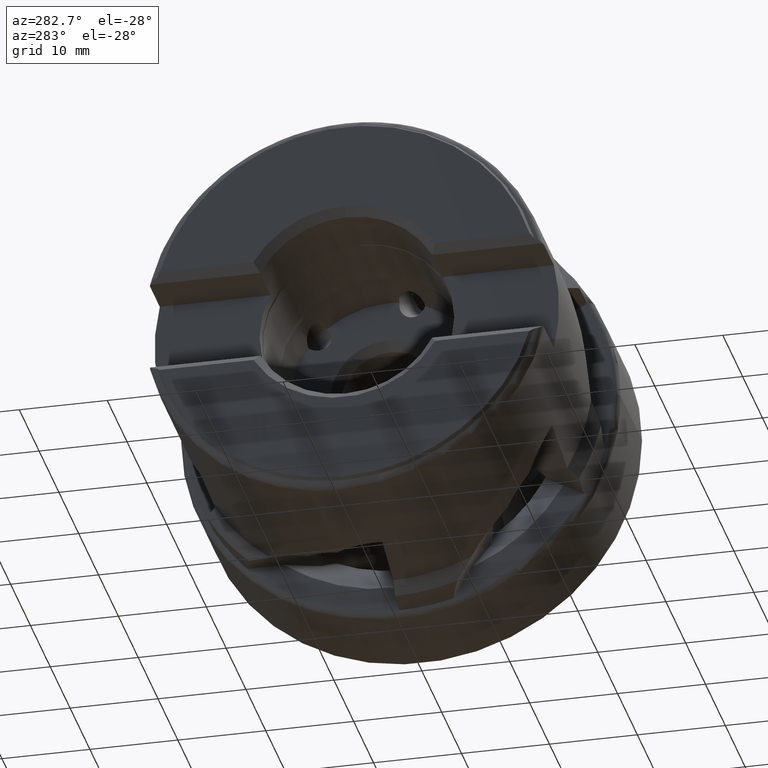
[diagram: clean part render]
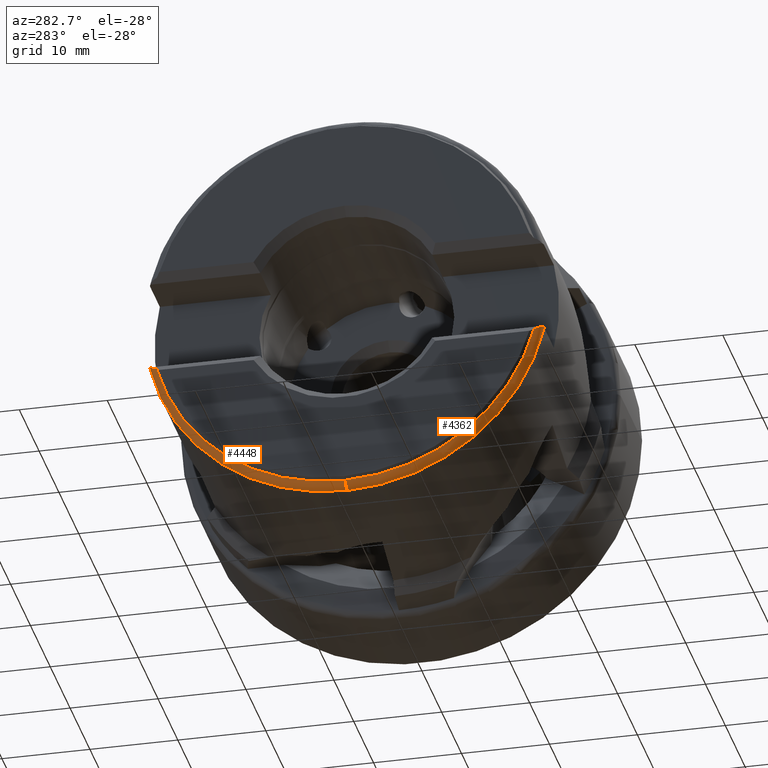
[diagram: same view with one multi-face feature highlighted, each face labeled with its STEP entity id]
A machine part, auxiliary view. The highlighted faces form ONE feature: a constant-radius fillet chain: 2 tangent blend faces with common blend radius 1 mm. The faces share edges in the B-rep.
Their STEP definitions:
[1] entity #4362 (Torus):
#1515 = AXIS2_PLACEMENT_3D ( 'NONE', #7624, #7625, #7626 ) ;
#1516 = AXIS2_PLACEMENT_3D ( 'NONE', #7630, #7631, #7632 ) ;
#1517 = AXIS2_PLACEMENT_3D ( 'NONE', #7635, #7636, #7637 ) ;
#1717 = VERTEX_POINT ( 'NONE', #6655 ) ;
#1750 = VERTEX_POINT ( 'NONE', #6688 ) ;
#1762 = VERTEX_POINT ( 'NONE', #6700 ) ;
#1779 = VERTEX_POINT ( 'NONE', #6717 ) ;
#1791 = VERTEX_POINT ( 'NONE', #6729 ) ;
#2083 = ORIENTED_EDGE ( 'NONE', *, *, #4012, .F. ) ;
#2105 = ORIENTED_EDGE ( 'NONE', *, *, #4011, .F. ) ;
#2137 = ORIENTED_EDGE ( 'NONE', *, *, #4009, .T. ) ;
#2166 = ORIENTED_EDGE ( 'NONE', *, *, #4007, .T. ) ;
#2185 = ORIENTED_EDGE ( 'NONE', *, *, #4010, .F. ) ;
#2325 = B_SPLINE_CURVE_WITH_KNOTS ( 'NONE', 3,
 ( #7633, #7634, #7639, #7640, #7641, #7642 ),
 .UNSPECIFIED., .F., .F.,
 ( 4, 2, 4 ),
 ( 0.006021717635779985300, 0.006282260667027661900, 0.006542803698275339300 ),
 .UNSPECIFIED. ) ;
#2355 = B_SPLINE_CURVE_WITH_KNOTS ( 'NONE', 3,
 ( #7629, #7638, #7644, #7645, #7646, #7647, #7648, #7649 ),
 .UNSPECIFIED., .F., .F.,
 ( 4, 2, 2, 4 ),
 ( 1.061744807446409200E-006, 0.0002681628969979941200, 0.0005352640491885418300, 0.001069466353569637100 ),
 .UNSPECIFIED. ) ;
#3200 = EDGE_LOOP ( 'NONE', ( #2166, #2137, #2185, #2105, #2083 ) ) ;
#4007 = EDGE_CURVE ( 'NONE', #1750, #1791, #5432, .T. ) ;
#4009 = EDGE_CURVE ( 'NONE', #1791, #1717, #5436, .T. ) ;
#4010 = EDGE_CURVE ( 'NONE', #1762, #1717, #5437, .T. ) ;
#4011 = EDGE_CURVE ( 'NONE', #1779, #1762, #2325, .T. ) ;
#4012 = EDGE_CURVE ( 'NONE', #1750, #1779, #2355, .T. ) ;
#4362 = ADVANCED_FACE ( 'NONE', ( #8349 ), #8338, .T. ) ;
#5432 = CIRCLE ( 'NONE', #1515, 22.20499999999999500 ) ;
#5436 = CIRCLE ( 'NONE', #1516, 1.000000000000000900 ) ;
#5437 = CIRCLE ( 'NONE', #1517, 22.99999999999999600 ) ;
#6655 = CARTESIAN_POINT ( 'NONE',  ( -37.64999999999999900, 0.0000000000000000000, -22.99999999999999600 ) ) ;
#6688 = CARTESIAN_POINT ( 'NONE',  ( -38.62876197310683300, -21.46657139491063800, -5.678761973106833900 ) ) ;
#6700 = CARTESIAN_POINT ( 'NONE',  ( -37.64999999999999900, -22.40446384094026300, -5.199999999999996600 ) ) ;
#6717 = CARTESIAN_POINT ( 'NONE',  ( -38.14999999999999900, -22.26690633577446800, -5.199999999999996600 ) ) ;
#6729 = CARTESIAN_POINT ( 'NONE',  ( -38.62876197310683300, 0.0000000000000000000, -22.20499999999999500 ) ) ;
#7624 = CARTESIAN_POINT ( 'NONE',  ( -38.62876197310683300, 0.0000000000000000000, 0.0000000000000000000 ) ) ;
#7625 = DIRECTION ( 'NONE',  ( 1.000000000000000000, -0.0000000000000000000, -0.0000000000000000000 ) ) ;
#7626 = DIRECTION ( 'NONE',  ( 0.0000000000000000000, 0.0000000000000000000, -1.000000000000000000 ) ) ;
#7629 = CARTESIAN_POINT ( 'NONE',  ( -38.62876197310683300, -21.46657139491063800, -5.678761973106833900 ) ) ;
#7630 = CARTESIAN_POINT ( 'NONE',  ( -37.64999999999999900, 0.0000000000000000000, -21.99999999999999300 ) ) ;
#7631 = DIRECTION ( 'NONE',  ( -0.0000000000000000000, -1.000000000000000000, -0.0000000000000000000 ) ) ;
#7632 = DIRECTION ( 'NONE',  ( 0.0000000000000000000, 0.0000000000000000000, -1.000000000000000000 ) ) ;
#7633 = CARTESIAN_POINT ( 'NONE',  ( -38.14999999999999900, -22.26690633577446800, -5.199999999999996600 ) ) ;
#7634 = CARTESIAN_POINT ( 'NONE',  ( -38.07523229566792400, -22.31123495648075300, -5.199999999999996600 ) ) ;
#7635 = CARTESIAN_POINT ( 'NONE',  ( -37.64999999999999900, 0.0000000000000000000, 0.0000000000000000000 ) ) ;
#7636 = DIRECTION ( 'NONE',  ( 1.000000000000000000, -0.0000000000000000000, -0.0000000000000000000 ) ) ;
#7637 = DIRECTION ( 'NONE',  ( 0.0000000000000000000, 0.0000000000000000000, -1.000000000000000000 ) ) ;
#7638 = CARTESIAN_POINT ( 'NONE',  ( -38.61195635130867700, -21.55401482113405400, -5.661956351308677200 ) ) ;
#7639 = CARTESIAN_POINT ( 'NONE',  ( -37.99345379430198500, -22.34618985750359600, -5.199999999999997500 ) ) ;
#7640 = CARTESIAN_POINT ( 'NONE',  ( -37.82439606163386300, -22.39271695214760200, -5.199999999999995700 ) ) ;
#7641 = CARTESIAN_POINT ( 'NONE',  ( -37.73689847892964600, -22.40446384094026700, -5.199999999999996600 ) ) ;
#7642 = CARTESIAN_POINT ( 'NONE',  ( -37.64999999999999900, -22.40446384094026300, -5.199999999999996600 ) ) ;
#7644 = CARTESIAN_POINT ( 'NONE',  ( -38.58672290460707200, -21.63566377182803200, -5.636722904607067300 ) ) ;
#7645 = CARTESIAN_POINT ( 'NONE',  ( -38.52379208791146000, -21.79039221438813500, -5.573792087911468400 ) ) ;
#7646 = CARTESIAN_POINT ( 'NONE',  ( -38.48564754262157800, -21.86372606048918500, -5.535647542621577000 ) ) ;
#7647 = CARTESIAN_POINT ( 'NONE',  ( -38.36022710353748300, -22.06392698798663700, -5.410227103537483400 ) ) ;
#7648 = CARTESIAN_POINT ( 'NONE',  ( -38.25993680514422100, -22.17605290837838800, -5.309936805144234400 ) ) ;
#7649 = CARTESIAN_POINT ( 'NONE',  ( -38.14999999999999900, -22.26690633577446800, -5.199999999999996600 ) ) ;
#8082 = AXIS2_PLACEMENT_3D ( 'NONE', #8713, #8712, #8715 ) ;
#8338 = TOROIDAL_SURFACE ( 'NONE', #8082, 21.99999999999999300, 1.000000000000001100 ) ;
#8349 = FACE_OUTER_BOUND ( 'NONE', #3200, .T. ) ;
#8712 = DIRECTION ( 'NONE',  ( 1.000000000000000000, -0.0000000000000000000, -0.0000000000000000000 ) ) ;
#8713 = CARTESIAN_POINT ( 'NONE',  ( -37.64999999999999900, 0.0000000000000000000, 0.0000000000000000000 ) ) ;
#8715 = DIRECTION ( 'NONE',  ( 0.0000000000000000000, 0.0000000000000000000, -1.000000000000000000 ) ) ;
[2] entity #4448 (Torus):
#206 = EDGE_CURVE ( 'NONE', #1717, #1606, #1828, .T. ) ;
#541 = EDGE_CURVE ( 'NONE', #1791, #2990, #5089, .T. ) ;
#542 = EDGE_CURVE ( 'NONE', #2927, #2990, #3843, .T. ) ;
#543 = EDGE_CURVE ( 'NONE', #1606, #2927, #3825, .T. ) ;
#752 = ORIENTED_EDGE ( 'NONE', *, *, #4009, .F. ) ;
#753 = ORIENTED_EDGE ( 'NONE', *, *, #541, .T. ) ;
#754 = ORIENTED_EDGE ( 'NONE', *, *, #542, .F. ) ;
#755 = ORIENTED_EDGE ( 'NONE', *, *, #543, .F. ) ;
#756 = ORIENTED_EDGE ( 'NONE', *, *, #206, .F. ) ;
#1311 = AXIS2_PLACEMENT_3D ( 'NONE', #2592, #3354, #3355 ) ;
#1377 = AXIS2_PLACEMENT_3D ( 'NONE', #5719, #5720, #5721 ) ;
#1516 = AXIS2_PLACEMENT_3D ( 'NONE', #7630, #7631, #7632 ) ;
#1606 = VERTEX_POINT ( 'NONE', #6585 ) ;
#1717 = VERTEX_POINT ( 'NONE', #6655 ) ;
#1791 = VERTEX_POINT ( 'NONE', #6729 ) ;
#1828 = CIRCLE ( 'NONE', #1311, 22.99999999999999600 ) ;
#2110 = EDGE_LOOP ( 'NONE', ( #752, #753, #754, #755, #756 ) ) ;
#2592 = CARTESIAN_POINT ( 'NONE',  ( -37.64999999999999900, 0.0000000000000000000, 0.0000000000000000000 ) ) ;
#2927 = VERTEX_POINT ( 'NONE', #6780 ) ;
#2990 = VERTEX_POINT ( 'NONE', #6817 ) ;
#3354 = DIRECTION ( 'NONE',  ( 1.000000000000000000, -0.0000000000000000000, -0.0000000000000000000 ) ) ;
#3355 = DIRECTION ( 'NONE',  ( 0.0000000000000000000, 0.0000000000000000000, -1.000000000000000000 ) ) ;
#3825 = B_SPLINE_CURVE_WITH_KNOTS ( 'NONE', 3,
 ( #5728, #5718, #5729, #5730, #5731, #5732 ),
 .UNSPECIFIED., .F., .F.,
 ( 4, 2, 4 ),
 ( 0.003455092749653682800, 0.003716538877995856700, 0.003977985006338030600 ),
 .UNSPECIFIED. ) ;
#3843 = B_SPLINE_CURVE_WITH_KNOTS ( 'NONE', 3,
 ( #5722, #5708, #5717, #5723, #5724, #5725, #5726, #5727 ),
 .UNSPECIFIED., .F., .F.,
 ( 4, 2, 2, 4 ),
 ( 3.242587267463806100E-007, 0.0005344094152499710300, 0.0008014519935115818200, 0.001068494571773192500 ),
 .UNSPECIFIED. ) ;
#4009 = EDGE_CURVE ( 'NONE', #1791, #1717, #5436, .T. ) ;
#4448 = ADVANCED_FACE ( 'NONE', ( #8545 ), #8550, .T. ) ;
#5089 = CIRCLE ( 'NONE', #1377, 22.20499999999999500 ) ;
#5436 = CIRCLE ( 'NONE', #1516, 1.000000000000000900 ) ;
#5708 = CARTESIAN_POINT ( 'NONE',  ( -38.25979946774829400, 22.17616640606598500, -5.309799467748305800 ) ) ;
#5717 = CARTESIAN_POINT ( 'NONE',  ( -38.35923478510266400, 22.06538752116017200, -5.409234785102681200 ) ) ;
#5718 = CARTESIAN_POINT ( 'NONE',  ( -37.73765579300707200, 22.40446384094027000, -5.199999999999996600 ) ) ;
#5719 = CARTESIAN_POINT ( 'NONE',  ( -38.62876197310683300, 0.0000000000000000000, 0.0000000000000000000 ) ) ;
#5720 = DIRECTION ( 'NONE',  ( 1.000000000000000000, -0.0000000000000000000, -0.0000000000000000000 ) ) ;
#5721 = DIRECTION ( 'NONE',  ( 0.0000000000000000000, 0.0000000000000000000, -1.000000000000000000 ) ) ;
#5722 = CARTESIAN_POINT ( 'NONE',  ( -38.14999999999999900, 22.26690633578259300, -5.199999999999996600 ) ) ;
#5723 = CARTESIAN_POINT ( 'NONE',  ( -38.48567351880766600, 21.86374597437706100, -5.535673518807684900 ) ) ;
#5724 = CARTESIAN_POINT ( 'NONE',  ( -38.52305463495213900, 21.79193892968535100, -5.573054634952134400 ) ) ;
#5725 = CARTESIAN_POINT ( 'NONE',  ( -38.58622442846504400, 21.63715067332383400, -5.636224428465047800 ) ) ;
#5726 = CARTESIAN_POINT ( 'NONE',  ( -38.61200591172719500, 21.55375694714094000, -5.662005911727192100 ) ) ;
#5727 = CARTESIAN_POINT ( 'NONE',  ( -38.62876197310683300, 21.46657139491063800, -5.678761973106833900 ) ) ;
#5728 = CARTESIAN_POINT ( 'NONE',  ( -37.64999999999999900, 22.40446384094028400, -5.199999999999996600 ) ) ;
#5729 = CARTESIAN_POINT ( 'NONE',  ( -37.82404845905169600, 22.39283514653599700, -5.199999999999997500 ) ) ;
#5730 = CARTESIAN_POINT ( 'NONE',  ( -37.99426660857426400, 22.34594356858026000, -5.199999999999995700 ) ) ;
#5731 = CARTESIAN_POINT ( 'NONE',  ( -38.07470424474225700, 22.31154802974361900, -5.199999999999996600 ) ) ;
#5732 = CARTESIAN_POINT ( 'NONE',  ( -38.14999999999999900, 22.26690633578259300, -5.199999999999996600 ) ) ;
#6585 = CARTESIAN_POINT ( 'NONE',  ( -37.64999999999999900, 22.40446384094028400, -5.199999999999996600 ) ) ;
#6655 = CARTESIAN_POINT ( 'NONE',  ( -37.64999999999999900, 0.0000000000000000000, -22.99999999999999600 ) ) ;
#6729 = CARTESIAN_POINT ( 'NONE',  ( -38.62876197310683300, 0.0000000000000000000, -22.20499999999999500 ) ) ;
#6780 = CARTESIAN_POINT ( 'NONE',  ( -38.14999999999999900, 22.26690633578259300, -5.199999999999996600 ) ) ;
#6817 = CARTESIAN_POINT ( 'NONE',  ( -38.62876197310683300, 21.46657139491063800, -5.678761973106833900 ) ) ;
#7630 = CARTESIAN_POINT ( 'NONE',  ( -37.64999999999999900, 0.0000000000000000000, -21.99999999999999300 ) ) ;
#7631 = DIRECTION ( 'NONE',  ( -0.0000000000000000000, -1.000000000000000000, -0.0000000000000000000 ) ) ;
#7632 = DIRECTION ( 'NONE',  ( 0.0000000000000000000, 0.0000000000000000000, -1.000000000000000000 ) ) ;
#8242 = AXIS2_PLACEMENT_3D ( 'NONE', #9124, #9123, #9126 ) ;
#8545 = FACE_OUTER_BOUND ( 'NONE', #2110, .T. ) ;
#8550 = TOROIDAL_SURFACE ( 'NONE', #8242, 21.99999999999999300, 1.000000000000001100 ) ;
#9123 = DIRECTION ( 'NONE',  ( 1.000000000000000000, -0.0000000000000000000, -0.0000000000000000000 ) ) ;
#9124 = CARTESIAN_POINT ( 'NONE',  ( -37.64999999999999900, 0.0000000000000000000, 0.0000000000000000000 ) ) ;
#9126 = DIRECTION ( 'NONE',  ( 0.0000000000000000000, 0.0000000000000000000, -1.000000000000000000 ) ) ;